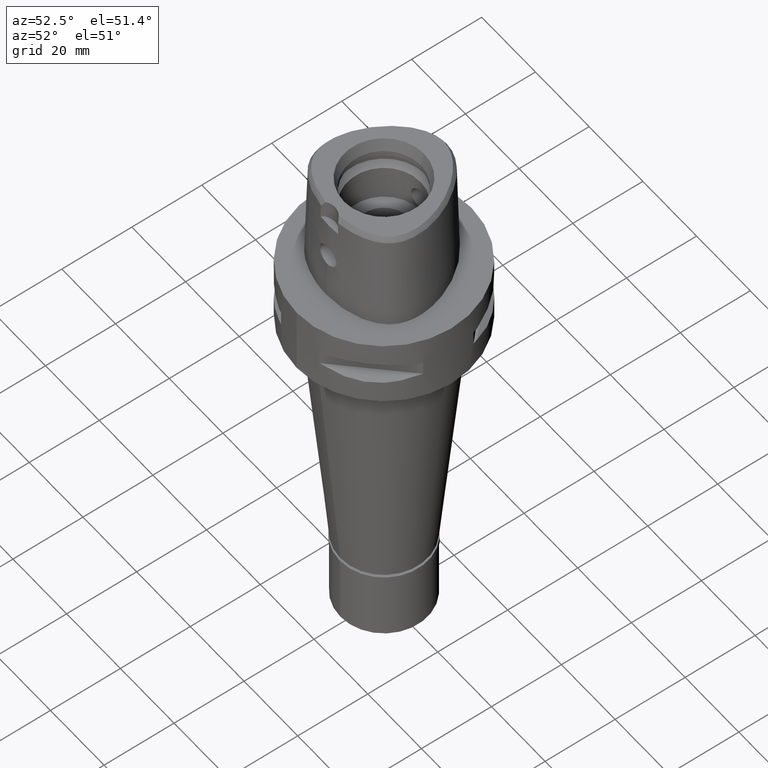
[diagram: clean part render]
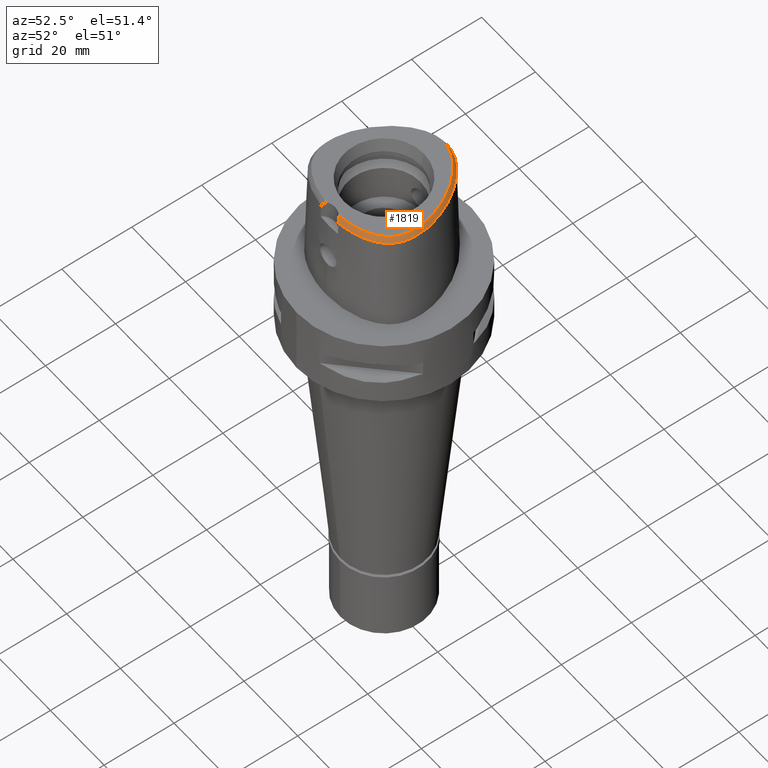
[diagram: same view with one face highlighted and labeled with its STEP entity id]
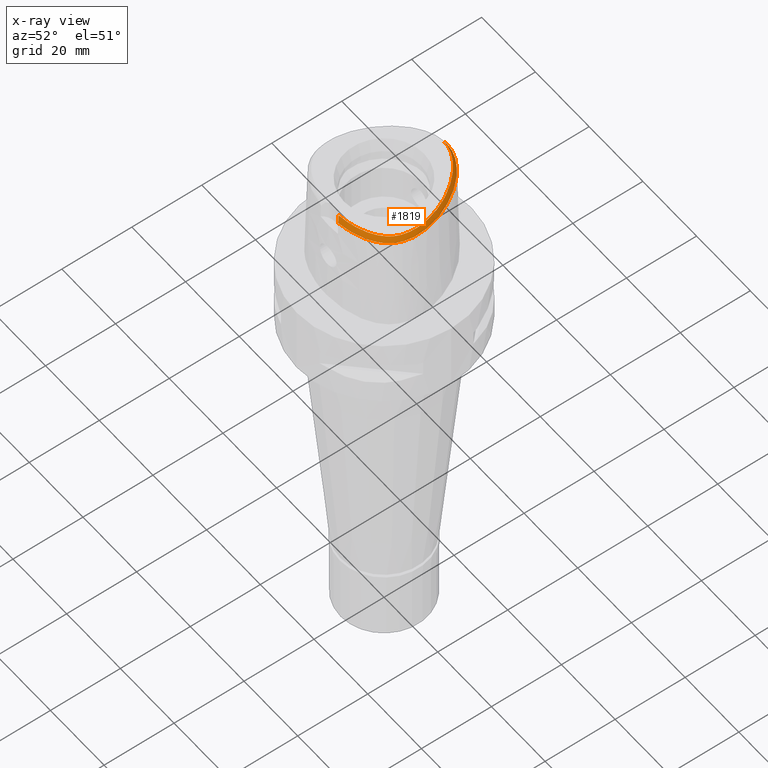
[diagram: x-ray of the same camera — body ghosted, the highlighted face saturated]
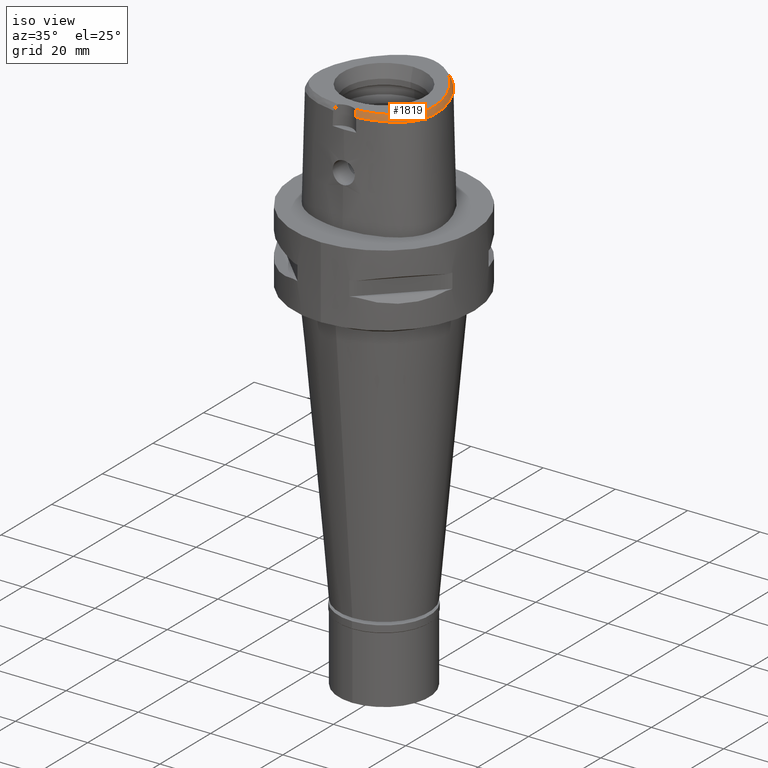
[diagram: same view with one face highlighted and labeled with its STEP entity id]
A machine part, auxiliary view. The second image highlights one B-rep face of the part: STEP entity #1819.
The next image is the same camera in x-ray: the body ghosted, the highlighted face saturated — about 0% of this face is hidden behind the body in this view.
A second angle (iso view) of the same face is appended — the face is thin or edge-on in the first view.
In plain terms, the highlighted face is a freeform B-spline surface patch.
Its self-contained STEP definition (entity closure, byte-faithful):
#11 = CARTESIAN_POINT ( 'NONE',  ( 15.20108607701999937, -9.758768688860000040, 28.35264070983000195 ) ) ;
#33 = CARTESIAN_POINT ( 'NONE',  ( 16.66822642488000028, -4.419018355000999598, 28.95776800847999866 ) ) ;
#60 = CARTESIAN_POINT ( 'NONE',  ( 14.93120362773000132, 2.838646878697999476, 30.16802042475999812 ) ) ;
#86 = CARTESIAN_POINT ( 'NONE',  ( 16.28426786323999664, -1.628544347997999964, 29.56289374736999775 ) ) ;
#90 = CARTESIAN_POINT ( 'NONE',  ( 13.06460231238608749, -11.91950040983109105, 28.52071728562181363 ) ) ;
#95 = CARTESIAN_POINT ( 'NONE',  ( -3.151836986556000306E-11, 17.98202997909999823, 28.52071728569000086 ) ) ;
#106 = CARTESIAN_POINT ( 'NONE',  ( 13.89958698847000029, 6.911061858659999224, 28.95776760247999704 ) ) ;
#109 = CARTESIAN_POINT ( 'NONE',  ( -3.151836986556000306E-11, 17.98202997909999823, 28.52071728569000086 ) ) ;
#128 = CARTESIAN_POINT ( 'NONE',  ( 16.14363952323000007, -0.5742837384183000493, 29.56289418609000208 ) ) ;
#156 = CARTESIAN_POINT ( 'NONE',  ( 9.846525789996000810, 12.60585534085999981, 28.95776852402000401 ) ) ;
#177 = CARTESIAN_POINT ( 'NONE',  ( -0.4659712255681999760, 17.04655818646000043, 30.16802046063999754 ) ) ;
#207 = CARTESIAN_POINT ( 'NONE',  ( 10.55999432271999972, -12.41196316433999947, 30.16802043341999706 ) ) ;
#210 = CARTESIAN_POINT ( 'NONE',  ( 3.078265684543390002, 16.60532678263332329, 30.00000000000050449 ) ) ;
#228 = CARTESIAN_POINT ( 'NONE',  ( 4.136168815293000733, 17.18416905505999992, 28.35264180473000195 ) ) ;
#235 = CARTESIAN_POINT ( 'NONE',  ( 3.159355835243000232, -14.97804560411000097, 29.56289406500999917 ) ) ;
#255 = CARTESIAN_POINT ( 'NONE',  ( 7.215654530265999789, 14.98093043066000085, 28.95776696848999876 ) ) ;
#260 = CARTESIAN_POINT ( 'NONE',  ( 5.498338331967000059, -14.59466473752000049, 29.56289419962000053 ) ) ;
#279 = CARTESIAN_POINT ( 'NONE',  ( 5.553361508172001137, 16.09050947237000173, 28.95777147311999755 ) ) ;
#285 = CARTESIAN_POINT ( 'NONE',  ( 8.077160341298000645, -14.58980366241999960, 28.35264410543000224 ) ) ;
#290 = CARTESIAN_POINT ( 'NONE',  ( 12.04928217776374666, -11.59002493206947371, 30.00000000000409983 ) ) ;
#292 = B_SPLINE_SURFACE_WITH_KNOTS ( 'NONE', 3, 3, ( 
 ( #3299, #2569, #3381, #2171 ),
 ( #2972, #3272, #3682, #4110 ),
 ( #595, #674, #2196, #3347 ),
 ( #2517, #235, #4084, #1746 ),
 ( #4903, #1009, #3764, #2938 ),
 ( #3732, #260, #4799, #1795 ),
 ( #4481, #2864, #2889, #1773 ),
 ( #318, #2120, #4405, #285 ),
 ( #959, #4873, #3653, #1852 ),
 ( #4510, #4820, #1067, #2594 ),
 ( #207, #1369, #1391, #2912 ),
 ( #395, #3790, #4625, #2297 ),
 ( #4232, #819, #1475, #1191 ),
 ( #1924, #3502, #793, #2326 ),
 ( #4185, #4601, #2619, #2253 ),
 ( #3838, #3812, #4161, #3096 ),
 ( #3456, #4534, #1577, #1499 ),
 ( #3023, #4559, #3866, #11 ),
 ( #2998, #1526, #343, #1090 ),
 ( #3052, #725, #422, #4581 ),
 ( #4926, #1875, #1552, #3404 ),
 ( #3071, #2715, #1115, #2646 ),
 ( #745, #2273, #1162, #2685 ),
 ( #365, #1899, #3429, #4949 ),
 ( #1138, #2662, #1950, #4205 ),
 ( #766, #3480, #33, #4260 ),
 ( #2349, #3891, #445, #1973 ),
 ( #2809, #4279, #4672, #1239 ),
 ( #891, #86, #3531, #2787 ),
 ( #4349, #128, #1290, #1263 ),
 ( #517, #4328, #840, #1627 ),
 ( #2832, #4653, #1603, #1670 ),
 ( #60, #3167, #2093, #3195 ),
 ( #2422, #2740, #4004, #3961 ),
 ( #2762, #3122, #867, #2027 ),
 ( #910, #1645, #106, #1217 ),
 ( #2397, #2442, #3914, #3981 ),
 ( #540, #2370, #4719, #3146 ),
 ( #2071, #2465, #4301, #3938 ),
 ( #472, #2003, #497, #4696 ),
 ( #3602, #3553, #156, #2047 ),
 ( #1695, #3574, #3215, #4741 ),
 ( #1309, #4371, #931, #567 ),
 ( #3293, #2510, #255, #953 ),
 ( #669, #2190, #4835, #1740 ),
 ( #3727, #1034, #279, #2562 ),
 ( #2883, #4815, #1814, #2491 ),
 ( #641, #2139, #3702, #228 ),
 ( #1361, #1790, #1767, #1386 ),
 ( #2965, #1062, #3314, #4446 ),
 ( #692, #3339, #2165, #977 ),
 ( #2906, #4049, #1408, #4791 ),
 ( #4763, #4398, #2931, #4867 ),
 ( #4504, #3238, #1442, #4105 ),
 ( #3623, #3267, #2587, #4422 ),
 ( #177, #4129, #4474, #1716 ) ),
 .UNSPECIFIED., .F., .F., .F.,
 ( 4, 1, 1, 1, 1, 1, 1, 1, 1, 1, 1, 1, 1, 1, 1, 1, 1, 1, 1, 1, 1, 1, 1, 1, 1, 1, 1, 1, 1, 1, 1, 1, 1, 1, 1, 1, 1, 1, 1, 1, 1, 1, 1, 1, 1, 1, 1, 1, 1, 1, 1, 1, 1, 4 ),
 ( 4, 4 ),
 ( -0.006850724150829000207, 0.0000000000000000000, 0.005706470806014000280, 0.02559234138984000165, 0.04547821197368000223, 0.06536408255751000040, 0.08524995314132000068, 0.1051358237252000005, 0.1250216943090000088, 0.1449075648927999893, 0.1647934354767000009, 0.1846793060604999814, 0.2045651766443000175, 0.2244510472280999980, 0.2443369178119999818, 0.2642227883957999901, 0.2841086589796000261, 0.3039945295635000377, 0.3238804001471999872, 0.3437662707310999988, 0.3636521413150000104, 0.3835380118987999909, 0.4034238824826000269, 0.4233097530664000074, 0.4431956236502999635, 0.4630814942340999996, 0.4829673648179000356, 0.5028532354018000472, 0.5227391059856000277, 0.5426249765694000082, 0.5625108471533000198, 0.5823967177369999693, 0.6022825883208999809, 0.6221684589047999925, 0.6420543294886000840, 0.6619402000723999535, 0.6818260706561999340, 0.7017119412401000567, 0.7215978118238999262, 0.7414836824077000177, 0.7613695529916000293, 0.7812554235752999787, 0.8011412941591999903, 0.8210271647431000019, 0.8409130353268000624, 0.8607989059106999630, 0.8806847764944999435, 0.9005706470783999551, 0.9204565176621999356, 0.9403423882460000272, 0.9602282588299000388, 0.9801141294135999882, 1.000000000000000000, 1.016057694064999906 ),
 ( -0.08998240799969001169, 1.090013252295000123 ),
 .UNSPECIFIED. ) ;
#312 = LINE ( 'NONE', #642, #4620 ) ;
#318 = CARTESIAN_POINT ( 'NONE',  ( 7.753896900226999733, -13.62494478887999882, 30.16802009195999901 ) ) ;
#343 = CARTESIAN_POINT ( 'NONE',  ( 15.26352445036999939, -9.046657508629998290, 28.95776745083999870 ) ) ;
#346 = CARTESIAN_POINT ( 'NONE',  ( 15.87349190488414052, -5.869792298897986704, 30.00000000000088107 ) ) ;
#365 = CARTESIAN_POINT ( 'NONE',  ( 15.78127682140000054, -5.850567774874999571, 30.16802044567999985 ) ) ;
#368 = CARTESIAN_POINT ( 'NONE',  ( 16.12546998862802639, -3.533461825553696478, 30.00000000000498090 ) ) ;
#395 = CARTESIAN_POINT ( 'NONE',  ( 11.31767571341000078, -11.96818521472000008, 30.16802036058999903 ) ) ;
#400 = CARTESIAN_POINT ( 'NONE',  ( 2.538962679605312633, -14.79292722369588020, 30.00000000000433431 ) ) ;
#422 = CARTESIAN_POINT ( 'NONE',  ( 15.56185250034999967, -8.515783017936000121, 28.95776713568000105 ) ) ;
#445 = CARTESIAN_POINT ( 'NONE',  ( 16.70965985035999779, -3.542375271213999977, 28.95776752072999827 ) ) ;
#449 = CARTESIAN_POINT ( 'NONE',  ( 15.07117004567390772, -9.793013887526733185, 28.52071728562181363 ) ) ;
#472 = CARTESIAN_POINT ( 'NONE',  ( 10.20690534842999853, 11.18227713228999853, 30.16802047890999816 ) ) ;
#497 = CARTESIAN_POINT ( 'NONE',  ( 10.72562660520000044, 11.61941119964000002, 28.95776703399999974 ) ) ;
#517 = CARTESIAN_POINT ( 'NONE',  ( 15.59736223284999923, 0.4714744251984999690, 30.16802001474000150 ) ) ;
#520 = CARTESIAN_POINT ( 'NONE',  ( 13.75951381385524641, 7.944084035686222123, 28.52071728562181363 ) ) ;
#540 = CARTESIAN_POINT ( 'NONE',  ( 11.84862262587000181, 9.008523897194999464, 30.16802029405999974 ) ) ;
#544 = CARTESIAN_POINT ( 'NONE',  ( 16.01658383235946559, -8.155509186612466266, 28.52071728562181363 ) ) ;
#567 = CARTESIAN_POINT ( 'NONE',  ( 8.299428632036999431, 14.54708683189999974, 28.35264139481000001 ) ) ;
#595 = CARTESIAN_POINT ( 'NONE',  ( 2.372222486974000066, -14.71472236847000126, 30.16802033112000103 ) ) ;
#598 = CARTESIAN_POINT ( 'NONE',  ( 2.412811123804766034, 16.81558681049695281, 30.00000000001108802 ) ) ;
#641 = CARTESIAN_POINT ( 'NONE',  ( 3.735855227914000487, 16.24848426612999930, 30.16802032662000244 ) ) ;
#642 = CARTESIAN_POINT ( 'NONE',  ( -3.151836986556000306E-11, 17.98202997909999823, 28.52071728569000086 ) ) ;
#669 = CARTESIAN_POINT ( 'NONE',  ( 5.995707402801000008, 15.01524536594000026, 30.16802002677999894 ) ) ;
#674 = CARTESIAN_POINT ( 'NONE',  ( 2.402456946345000066, -15.05239832832999980, 29.56289414095000012 ) ) ;
#692 = CARTESIAN_POINT ( 'NONE',  ( 1.754750221224000040, 16.87951038267999948, 30.16802039132999980 ) ) ;
#701 = CARTESIAN_POINT ( 'NONE',  ( 11.11868440496200350, 10.19157821280083454, 29.99999999999684874 ) ) ;
#725 = CARTESIAN_POINT ( 'NONE',  ( 15.26036567120000065, -8.360145928168998708, 29.56289379909999937 ) ) ;
#728 = CARTESIAN_POINT ( 'NONE',  ( 11.92667412982349084, 9.061218325782578020, 30.00000000000128253 ) ) ;
#745 = CARTESIAN_POINT ( 'NONE',  ( 15.62053867974000099, -6.508755834456999345, 30.16802043498999808 ) ) ;
#749 = CARTESIAN_POINT ( 'NONE',  ( 16.08569500455237744, -4.373922630229524877, 29.99999999999851141 ) ) ;
#766 = CARTESIAN_POINT ( 'NONE',  ( 15.99178393915999941, -4.366652657469000332, 30.16802032181000115 ) ) ;
#770 = CARTESIAN_POINT ( 'NONE',  ( 16.11273027396869395, -2.627494158581224148, 29.99999999999872458 ) ) ;
#793 = CARTESIAN_POINT ( 'NONE',  ( 13.02515834811999973, -11.57704467828000006, 28.95776727097999981 ) ) ;
#819 = CARTESIAN_POINT ( 'NONE',  ( 12.19202666748000041, -11.78919921263000070, 29.56289411314000048 ) ) ;
#840 = CARTESIAN_POINT ( 'NONE',  ( 16.25952873868000026, 0.6188832785989999419, 28.95776991326999905 ) ) ;
#844 = CARTESIAN_POINT ( 'NONE',  ( 16.85489147434690338, -5.354527548487587829, 28.52071728562181363 ) ) ;
#867 = CARTESIAN_POINT ( 'NONE',  ( 14.54045689824000043, 5.623977478973000821, 28.95776800696999942 ) ) ;
#891 = CARTESIAN_POINT ( 'NONE',  ( 15.94691520740000179, -1.663942353905000004, 30.16802048240999667 ) ) ;
#910 = CARTESIAN_POINT ( 'NONE',  ( 13.30058975783000008, 6.592719771549999663, 30.16802038727000124 ) ) ;
#931 = CARTESIAN_POINT ( 'NONE',  ( 8.079606669788001128, 14.28876433472999885, 28.95776771935000227 ) ) ;
#953 = CARTESIAN_POINT ( 'NONE',  ( 7.420276005139000652, 15.25146325370999989, 28.35264020800000040 ) ) ;
#959 = CARTESIAN_POINT ( 'NONE',  ( 8.781287881952000163, -13.24681082985999936, 30.16802042516999904 ) ) ;
#963 = CARTESIAN_POINT ( 'NONE',  ( 0.1912597614439663918, 17.15328888648424055, 30.00000000000486367 ) ) ;
#977 = CARTESIAN_POINT ( 'NONE',  ( 1.964110771000000311, 17.87555189819000034, 28.35264117027000097 ) ) ;
#988 = CARTESIAN_POINT ( 'NONE',  ( 3.772905803807268921, 16.33508552418862791, 30.00000000000497025 ) ) ;
#1009 = CARTESIAN_POINT ( 'NONE',  ( 4.198490786215000270, -14.83958820926000044, 29.56289374305000095 ) ) ;
#1034 = CARTESIAN_POINT ( 'NONE',  ( 5.382250016268000259, 15.79760845128000035, 29.56289561819999889 ) ) ;
#1062 = CARTESIAN_POINT ( 'NONE',  ( 2.479143986014000323, 17.05149866766999978, 29.56289384507999785 ) ) ;
#1067 = CARTESIAN_POINT ( 'NONE',  ( 10.00378820212000086, -13.45443895826999814, 28.95776720350000133 ) ) ;
#1090 = CARTESIAN_POINT ( 'NONE',  ( 15.55325716051000029, -9.223218119925000735, 28.35264097041000042 ) ) ;
#1115 = CARTESIAN_POINT ( 'NONE',  ( 16.06810827240999728, -7.342948633684000193, 28.95776753670000048 ) ) ;
#1118 = CARTESIAN_POINT ( 'NONE',  ( 15.39668103801313315, 1.657188505494333608, 29.99999999999486988 ) ) ;
#1138 = CARTESIAN_POINT ( 'NONE',  ( 15.90656354326000077, -5.138263331581000237, 30.16802041655000011 ) ) ;
#1157 = VERTEX_POINT ( 'NONE', #1164 ) ;
#1162 = CARTESIAN_POINT ( 'NONE',  ( 16.27418236763000081, -6.690817860699000086, 28.95776730649999919 ) ) ;
#1164 = CARTESIAN_POINT ( 'NONE',  ( -6.301949014363000871E-11, 17.15328888647999861, 30.00000000000000000 ) ) ;
#1166 = CARTESIAN_POINT ( 'NONE',  ( 5.446614459517748585, -14.35518554872416352, 30.00000000000575184 ) ) ;
#1191 = CARTESIAN_POINT ( 'NONE',  ( 12.58725554600000152, -12.34067007982999975, 28.35264165578999851 ) ) ;
#1217 = CARTESIAN_POINT ( 'NONE',  ( 14.19908560378999951, 7.070232902214999449, 28.35264121008000160 ) ) ;
#1221 = CARTESIAN_POINT ( 'NONE',  ( 1.893775678554766806, 17.84807068955533538, 28.52071728562181363 ) ) ;
#1239 = CARTESIAN_POINT ( 'NONE',  ( 17.03523384025000098, -2.585599492101999797, 28.35264081057999874 ) ) ;
#1263 = CARTESIAN_POINT ( 'NONE',  ( 16.81309640162000107, -0.4645396157169000007, 28.35264193072999817 ) ) ;
#1290 = CARTESIAN_POINT ( 'NONE',  ( 16.47836796242000190, -0.5194116770676000527, 28.95776805840999657 ) ) ;
#1309 = CARTESIAN_POINT ( 'NONE',  ( 7.639962745288999990, 13.77211934037999974, 30.16802036843000323 ) ) ;
#1361 = CARTESIAN_POINT ( 'NONE',  ( 3.046870444664000033, 16.51651577336999921, 30.16802053052999710 ) ) ;
#1369 = CARTESIAN_POINT ( 'NONE',  ( 10.72210228808000032, -12.70993824541999828, 29.56289387478999942 ) ) ;
#1386 = CARTESIAN_POINT ( 'NONE',  ( 3.386080856372000181, 17.47607585737999969, 28.35263980546000084 ) ) ;
#1391 = CARTESIAN_POINT ( 'NONE',  ( 10.88421025343999915, -13.00791332650000065, 28.95776731615000088 ) ) ;
#1408 = CARTESIAN_POINT ( 'NONE',  ( 1.242508783616000034, 17.65713457141000120, 28.95776718780000181 ) ) ;
#1442 = CARTESIAN_POINT ( 'NONE',  ( 0.04123805393192999519, 17.74291017939000170, 28.95776754311999923 ) ) ;
#1454 = CARTESIAN_POINT ( 'NONE',  ( 14.55828366953175745, 4.114142377745124257, 29.99999999999967670 ) ) ;
#1458 = CARTESIAN_POINT ( 'NONE',  ( 3.168920890822999770, -15.55911073834000113, 28.52071374672999582 ) ) ;
#1471 = DIRECTION ( 'NONE',  ( -1.857805914923029675E-11, -0.4887572537803078765, 0.8724198226067148010 ) ) ;
#1475 = CARTESIAN_POINT ( 'NONE',  ( 12.38964110673999919, -12.06493464623000023, 28.95776788446000083 ) ) ;
#1478 = CARTESIAN_POINT ( 'NONE',  ( 8.816245487876880560, -13.33426548781757504, 30.00000000000753886 ) ) ;
#1499 = CARTESIAN_POINT ( 'NONE',  ( 14.79735732513999835, -10.28930169785000004, 28.35264137004999796 ) ) ;
#1502 = CARTESIAN_POINT ( 'NONE',  ( 14.76450668990636572, -8.742560395150022146, 30.00000000000000711 ) ) ;
#1526 = CARTESIAN_POINT ( 'NONE',  ( 14.97379174023000026, -8.870096897335001174, 29.56289393128000142 ) ) ;
#1552 = CARTESIAN_POINT ( 'NONE',  ( 15.82975963483999848, -7.950451497459000372, 28.95776760727000010 ) ) ;
#1556 = CARTESIAN_POINT ( 'NONE',  ( 15.29323375805276974, -7.718923543002600418, 30.00000000000494182 ) ) ;
#1577 = CARTESIAN_POINT ( 'NONE',  ( 14.53472563156999975, -10.07451885591000007, 28.95776770368000186 ) ) ;
#1603 = CARTESIAN_POINT ( 'NONE',  ( 15.95899656071000194, 1.815535126113000164, 28.95776962322999992 ) ) ;
#1627 = CARTESIAN_POINT ( 'NONE',  ( 16.59061199158999855, 0.6925877052993000271, 28.35264486254000005 ) ) ;
#1645 = CARTESIAN_POINT ( 'NONE',  ( 13.60008837314999930, 6.751890815104999888, 29.56289399487999958 ) ) ;
#1648 = CARTESIAN_POINT ( 'NONE',  ( 3.168920890822999770, -15.55911073834000113, 28.52071374672999582 ) ) ;
#1670 = CARTESIAN_POINT ( 'NONE',  ( 16.28548033193000322, 1.907472125490000003, 28.35264440410000475 ) ) ;
#1673 = CARTESIAN_POINT ( 'NONE',  ( 3.168920890822999770, -15.55911073834000113, 28.52071374672999582 ) ) ;
#1695 = CARTESIAN_POINT ( 'NONE',  ( 8.492151860396999652, 13.00596698357000136, 30.16802015642000256 ) ) ;
#1698 = CARTESIAN_POINT ( 'NONE',  ( 8.702202469521990835, -14.36510984286092274, 28.52071728562181363 ) ) ;
#1716 = CARTESIAN_POINT ( 'NONE',  ( -0.5229561071495999469, 18.06193447009999886, 28.35264049065000336 ) ) ;
#1740 = CARTESIAN_POINT ( 'NONE',  ( 6.560872531773000560, 15.86150864000000027, 28.35264474450000094 ) ) ;
#1746 = CARTESIAN_POINT ( 'NONE',  ( 3.239264989844999665, -15.65148810715999694, 28.35264147439999860 ) ) ;
#1767 = CARTESIAN_POINT ( 'NONE',  ( 3.273010719136000279, 17.15622249603999805, 28.95776671380999545 ) ) ;
#1773 = CARTESIAN_POINT ( 'NONE',  ( 6.902178190723000206, -14.94828583762000029, 28.35264484957999898 ) ) ;
#1790 = CARTESIAN_POINT ( 'NONE',  ( 3.159940581899999934, 16.83636913471000085, 29.56289362216999805 ) ) ;
#1795 = CARTESIAN_POINT ( 'NONE',  ( 5.641550641882000505, -15.25773125167999922, 28.35264198171000061 ) ) ;
#1814 = CARTESIAN_POINT ( 'NONE',  ( 4.762699714753000357, 16.51934938710000011, 28.95777065861999944 ) ) ;
#1819 = ADVANCED_FACE ( 'NONE', ( #3707 ), #292, .F. ) ;
#1825 = CARTESIAN_POINT ( 'NONE',  ( 7.783816186093136302, -13.71424622167420182, 30.00000000000237321 ) ) ;
#1852 = CARTESIAN_POINT ( 'NONE',  ( 9.158987939148000024, -14.19171619277000040, 28.35264083852999661 ) ) ;
#1875 = CARTESIAN_POINT ( 'NONE',  ( 15.51824948698999940, -7.816024975935000896, 29.56289399688000330 ) ) ;
#1897 = B_SPLINE_CURVE_WITH_KNOTS ( 'NONE', 3,
 ( #3323, #963, #2500, #2916, #4038, #598, #210, #988, #3276, #4802, #2520, #4457, #2175, #3075, #3001, #3432, #701, #728, #2256, #3407, #4929, #1454, #4606, #1118, #2622, #3842, #4906, #770, #368, #749, #3794, #346, #4584, #3460, #1556, #4188, #1502, #3026, #2200, #2598, #4209, #2276, #290, #4877, #2227, #4562, #1478, #1825, #2301, #1166, #2649, #3736, #400, #4138 ),
 .UNSPECIFIED., .F., .F.,
 ( 4, 1, 1, 1, 1, 1, 1, 1, 1, 1, 1, 1, 1, 1, 1, 1, 1, 1, 1, 1, 1, 1, 1, 1, 1, 1, 1, 1, 1, 1, 1, 1, 1, 1, 1, 1, 1, 1, 1, 1, 1, 1, 1, 1, 1, 1, 1, 1, 1, 1, 1, 4 ),
 ( 0.0000000000000000000, 0.01988587058640001182, 0.03977174117009996124, 0.05965761175399997285, 0.07954348233780006439, 0.09942935292160004490, 0.1193152235055000565, 0.1392010940893000370, 0.1590869646731999376, 0.1789728352568999981, 0.1988587058408000097, 0.2187445764247000213, 0.2386304470083999707, 0.2585163175922999823, 0.2784021881761000738, 0.2982880587598999433, 0.3181739293438000660, 0.3380597999276000465, 0.3579456705113999160, 0.3778315410952000075, 0.3977174116791000191, 0.4176032822630000307, 0.4374891528466999802, 0.4573750234305999918, 0.4772608940143999723, 0.4971467645981999528, 0.5170326351820999644, 0.5369185057659000559, 0.5568043763497000365, 0.5766902469335999371, 0.5965761175174000286, 0.6164619881012000091, 0.6363478586849999896, 0.6562337292689000012, 0.6761195998528000128, 0.6960054704364999623, 0.7158913410203999739, 0.7357772116042000654, 0.7556630821880000459, 0.7755489527718999465, 0.7954348233557000381, 0.8153206939395000186, 0.8352065645232999991, 0.8550924351072000107, 0.8749783056909999912, 0.8948641762747999717, 0.9147500468586799993, 0.9346359174424899718, 0.9545217880263200394, 0.9744076586101599879, 0.9942935291939859477, 1.000000000000000000 ),
 .UNSPECIFIED. ) ;
#1899 = CARTESIAN_POINT ( 'NONE',  ( 16.11338997565000142, -5.919805008861000140, 29.56289384291000033 ) ) ;
#1924 = CARTESIAN_POINT ( 'NONE',  ( 12.59549480417000034, -11.05193186378999926, 30.16802044070999855 ) ) ;
#1950 = CARTESIAN_POINT ( 'NONE',  ( 16.57834737185999785, -5.233402230241999575, 28.95776742079000243 ) ) ;
#1963 = B_SPLINE_CURVE_WITH_KNOTS ( 'NONE', 3,
 ( #1458, #3389, #4588, #2981 ),
 .UNSPECIFIED., .F., .F.,
 ( 4, 4 ),
 ( 0.0000000000000000000, 1.000000000000000000 ),
 .UNSPECIFIED. ) ;
#1973 = CARTESIAN_POINT ( 'NONE',  ( 17.04884399427000119, -3.547550471321999854, 28.35264108087000423 ) ) ;
#1977 = CARTESIAN_POINT ( 'NONE',  ( 3.738627708319470333, -15.49270856215736281, 28.52071728562181363 ) ) ;
#2003 = CARTESIAN_POINT ( 'NONE',  ( 10.46626597681999904, 11.40084416595999883, 29.56289375645999939 ) ) ;
#2027 = CARTESIAN_POINT ( 'NONE',  ( 14.84792544304999851, 5.767150398131000166, 28.35264184943000032 ) ) ;
#2030 = CARTESIAN_POINT ( 'NONE',  ( 7.523733068099057064, 15.26501041874376696, 28.52071728562181363 ) ) ;
#2047 = CARTESIAN_POINT ( 'NONE',  ( 10.09366286092000031, 12.83816147391999962, 28.35264266666999688 ) ) ;
#2071 = CARTESIAN_POINT ( 'NONE',  ( 11.04353024335000022, 10.13482674087000035, 30.16802034839999891 ) ) ;
#2093 = CARTESIAN_POINT ( 'NONE',  ( 15.57318278978999970, 3.057793050053000172, 28.95776736994000089 ) ) ;
#2120 = CARTESIAN_POINT ( 'NONE',  ( 7.861651380583999149, -13.94656441339000175, 29.56289476311999920 ) ) ;
#2139 = CARTESIAN_POINT ( 'NONE',  ( 3.869293090373999711, 16.56037919578000128, 29.56289415266000020 ) ) ;
#2165 = CARTESIAN_POINT ( 'NONE',  ( 1.894323921075000028, 17.54353805969000035, 28.95776757728999939 ) ) ;
#2171 = CARTESIAN_POINT ( 'NONE',  ( 1.994024657925000055, -15.76440487861999884, 28.35264174986000185 ) ) ;
#2175 = CARTESIAN_POINT ( 'NONE',  ( 7.700998872106144866, 13.84384558891187389, 30.00000000000491696 ) ) ;
#2184 = ORIENTED_EDGE ( 'NONE', *, *, #4603, .F. ) ;
#2190 = CARTESIAN_POINT ( 'NONE',  ( 6.184095779125000192, 15.29733312395999967, 29.56289493268999991 ) ) ;
#2196 = CARTESIAN_POINT ( 'NONE',  ( 2.432691405716000066, -15.39007428820000101, 28.95776795079000010 ) ) ;
#2200 = CARTESIAN_POINT ( 'NONE',  ( 14.08238499151621248, -9.704590128437896368, 30.00000000000073186 ) ) ;
#2227 = CARTESIAN_POINT ( 'NONE',  ( 10.60500548643880414, -12.49469941439922316, 29.99999999999686651 ) ) ;
#2238 = ORIENTED_EDGE ( 'NONE', *, *, #3313, .F. ) ;
#2253 = CARTESIAN_POINT ( 'NONE',  ( 13.82200032031999903, -11.32990785057000060, 28.35264069435000067 ) ) ;
#2256 = CARTESIAN_POINT ( 'NONE',  ( 12.68590586676490872, 7.870511070825371824, 30.00000000000323652 ) ) ;
#2273 = CARTESIAN_POINT ( 'NONE',  ( 15.94736052367999868, -6.599786847577999715, 29.56289387074000174 ) ) ;
#2276 = CARTESIAN_POINT ( 'NONE',  ( 12.65514534656671586, -11.12483370674303096, 30.00000000000379075 ) ) ;
#2297 = CARTESIAN_POINT ( 'NONE',  ( 11.85771127240999867, -12.83076002688000017, 28.35264147164999926 ) ) ;
#2301 = CARTESIAN_POINT ( 'NONE',  ( 6.658132732488880379, -14.05774790739165780, 30.00000000000118305 ) ) ;
#2326 = CARTESIAN_POINT ( 'NONE',  ( 13.23999012008999898, -11.83960108551999824, 28.35264068610999999 ) ) ;
#2349 = CARTESIAN_POINT ( 'NONE',  ( 16.03129156254999899, -3.532024870997999777, 30.16802040045000055 ) ) ;
#2370 = CARTESIAN_POINT ( 'NONE',  ( 12.12972556687000036, 9.198303185228999368, 29.56289423735000099 ) ) ;
#2397 = CARTESIAN_POINT ( 'NONE',  ( 12.60518995400000009, 7.821996579905999170, 30.16802042417999630 ) ) ;
#2422 = CARTESIAN_POINT ( 'NONE',  ( 14.47092152110000107, 4.078974141564000178, 30.16802044355999968 ) ) ;
#2425 = CARTESIAN_POINT ( 'NONE',  ( 11.33338046474365512, -13.08225241901232039, 28.52071728562181363 ) ) ;
#2442 = CARTESIAN_POINT ( 'NONE',  ( 12.89588877867999983, 7.996721798354999855, 29.56289389884999963 ) ) ;
#2465 = CARTESIAN_POINT ( 'NONE',  ( 11.31419838921999954, 10.33921749387000055, 29.56289409596999818 ) ) ;
#2491 = CARTESIAN_POINT ( 'NONE',  ( 4.915484675685000582, 16.82222480428999845, 28.35264604065000071 ) ) ;
#2500 = CARTESIAN_POINT ( 'NONE',  ( 0.5691917915716412368, 17.14006060249140262, 30.00000000000553513 ) ) ;
#2510 = CARTESIAN_POINT ( 'NONE',  ( 7.011033055392999813, 14.71039760759999915, 29.56289372897999712 ) ) ;
#2517 = CARTESIAN_POINT ( 'NONE',  ( 3.119401257941999628, -14.64132435257999987, 30.16802036031000256 ) ) ;
#2520 = CARTESIAN_POINT ( 'NONE',  ( 6.048015628560345469, 15.09357031580357500, 30.00000000000343903 ) ) ;
#2562 = CARTESIAN_POINT ( 'NONE',  ( 5.724473000077000329, 16.38341049346000133, 28.35264732804999710 ) ) ;
#2569 = CARTESIAN_POINT ( 'NONE',  ( 1.945176214678000060, -15.08814482384999955, 29.56289413809999900 ) ) ;
#2587 = CARTESIAN_POINT ( 'NONE',  ( -0.3323063933234999823, 17.73255392700000144, 28.95776737910999898 ) ) ;
#2594 = CARTESIAN_POINT ( 'NONE',  ( 10.14784788447999908, -13.76153600185999970, 28.35264057945000005 ) ) ;
#2598 = CARTESIAN_POINT ( 'NONE',  ( 13.66559393375312403, -10.18115111193949929, 29.99999999999980460 ) ) ;
#2619 = CARTESIAN_POINT ( 'NONE',  ( 13.59049429220000071, -11.08191602281999977, 28.95776727619000113 ) ) ;
#2622 = CARTESIAN_POINT ( 'NONE',  ( 15.68929135223799598, 0.4919393172822187910, 30.00000000000285283 ) ) ;
#2646 = CARTESIAN_POINT ( 'NONE',  ( 16.38807260029999924, -7.455768792758999730, 28.35264110610999921 ) ) ;
#2649 = CARTESIAN_POINT ( 'NONE',  ( 4.159771979224646365, -14.59766906204496628, 30.00000000000463984 ) ) ;
#2662 = CARTESIAN_POINT ( 'NONE',  ( 16.24245545755999842, -5.185832780910999418, 29.56289391866999949 ) ) ;
#2685 = CARTESIAN_POINT ( 'NONE',  ( 16.60100421157000028, -6.781848873819999568, 28.35264074226000020 ) ) ;
#2715 = CARTESIAN_POINT ( 'NONE',  ( 15.74814394453000155, -7.230128474609999856, 29.56289396728000085 ) ) ;
#2740 = CARTESIAN_POINT ( 'NONE',  ( 14.78555680181000120, 4.205632746709999203, 29.56289384841999990 ) ) ;
#2744 = CARTESIAN_POINT ( 'NONE',  ( 0.6295828025424338170, 17.98202997637806888, 28.52071728562181363 ) ) ;
#2762 = CARTESIAN_POINT ( 'NONE',  ( 13.92551980859999894, 5.337631640657999554, 30.16802032205000117 ) ) ;
#2787 = CARTESIAN_POINT ( 'NONE',  ( 16.95897317490999967, -1.557748336186000060, 28.35264027729000347 ) ) ;
#2809 = CARTESIAN_POINT ( 'NONE',  ( 16.01864062730999905, -2.631767154924999907, 30.16802042800999928 ) ) ;
#2832 = CARTESIAN_POINT ( 'NONE',  ( 15.30602901826000029, 1.631661127357000085, 30.16802006149000093 ) ) ;
#2863 = ORIENTED_EDGE ( 'NONE', *, *, #3060, .T. ) ;
#2864 = CARTESIAN_POINT ( 'NONE',  ( 6.722887135701999028, -14.29404098421000135, 29.56289496057000221 ) ) ;
#2883 = CARTESIAN_POINT ( 'NONE',  ( 4.457129792887999820, 15.91359855272000345, 30.16801989458000222 ) ) ;
#2889 = CARTESIAN_POINT ( 'NONE',  ( 6.812532663212000017, -14.62116341091000038, 28.95776990506999837 ) ) ;
#2906 = CARTESIAN_POINT ( 'NONE',  ( 1.148419774996000120, 16.98513741786999987, 30.16802045412000055 ) ) ;
#2912 = CARTESIAN_POINT ( 'NONE',  ( 11.04631821879999976, -13.30588840759000036, 28.35264075751999968 ) ) ;
#2916 = CARTESIAN_POINT ( 'NONE',  ( 1.161482229273709033, 17.07843133414790771, 30.00000000000297362 ) ) ;
#2931 = CARTESIAN_POINT ( 'NONE',  ( 0.6101341056648000860, 17.72298940832000014, 28.95776722765000244 ) ) ;
#2938 = CARTESIAN_POINT ( 'NONE',  ( 4.305694858988998952, -15.50941044500000032, 28.35264026102000301 ) ) ;
#2965 = CARTESIAN_POINT ( 'NONE',  ( 2.387313251284000071, 16.72490399869000299, 30.16802044485999801 ) ) ;
#2972 = CARTESIAN_POINT ( 'NONE',  ( 2.080499103721999976, -14.73847350319999983, 30.16802033008000095 ) ) ;
#2981 = CARTESIAN_POINT ( 'NONE',  ( 2.406543924163999648, -14.80491841401999942, 30.00000000000000000 ) ) ;
#2985 = B_SPLINE_CURVE_WITH_KNOTS ( 'NONE', 3,
 ( #109, #2744, #1221, #3895, #2030, #4744, #520, #3149, #3577, #4700, #844, #3556, #544, #3170, #449, #3919, #90, #2425, #1698, #3508, #1977, #1648 ),
 .UNSPECIFIED., .F., .F.,
 ( 4, 1, 1, 1, 1, 1, 1, 1, 1, 1, 1, 1, 1, 1, 1, 1, 1, 1, 1, 4 ),
 ( 0.0000000000000000000, 0.04404152929334002875, 0.08808305858551723766, 0.1761661171698718775, 0.2642491757542265174, 0.3523322343385811850, 0.4404152929230414348, 0.5284983515073961025, 0.5725398807995734085, 0.6165814100917506035, 0.6606229393839280206, 0.6826437040300166181, 0.7046644686762110199, 0.7266852333222997284, 0.7487059979682826327, 0.7927475272605656320, 0.8367890565527429381, 0.8808305858449201331, 0.9689136444292959505, 1.000000000000000000 ),
 .UNSPECIFIED. ) ;
#2998 = CARTESIAN_POINT ( 'NONE',  ( 14.68405903008999935, -8.693536286041000594, 30.16802041170999971 ) ) ;
#3001 = CARTESIAN_POINT ( 'NONE',  ( 9.420872132874471561, 12.20574557692369488, 30.00000000000589750 ) ) ;
#3023 = CARTESIAN_POINT ( 'NONE',  ( 14.37082809870000055, -9.169981917127000060, 30.16802043828999658 ) ) ;
#3026 = CARTESIAN_POINT ( 'NONE',  ( 14.44767169633571413, -9.224476417585490751, 30.00000000000223110 ) ) ;
#3052 = CARTESIAN_POINT ( 'NONE',  ( 14.95887884205000162, -8.204508838401999071, 30.16802046251999769 ) ) ;
#3060 = EDGE_CURVE ( 'NONE', #3986, #1157, #312, .T. ) ;
#3071 = CARTESIAN_POINT ( 'NONE',  ( 15.42817961663999959, -7.117308315535999519, 30.16802039787000211 ) ) ;
#3075 = CARTESIAN_POINT ( 'NONE',  ( 8.557117433367022130, 13.07415149352835115, 30.00000000000346390 ) ) ;
#3096 = CARTESIAN_POINT ( 'NONE',  ( 14.33933930363000009, -10.81289298040000091, 28.35264076666999955 ) ) ;
#3122 = CARTESIAN_POINT ( 'NONE',  ( 14.23298835341999968, 5.480804559815999788, 29.56289416451000207 ) ) ;
#3146 = CARTESIAN_POINT ( 'NONE',  ( 12.69193144887000102, 9.577861761298001042, 28.35264212395000172 ) ) ;
#3149 = CARTESIAN_POINT ( 'NONE',  ( 15.84228676732838537, 3.460033425848969557, 28.52071728562181363 ) ) ;
#3167 = CARTESIAN_POINT ( 'NONE',  ( 15.25219320875999962, 2.948219964374999780, 29.56289389735000128 ) ) ;
#3170 = CARTESIAN_POINT ( 'NONE',  ( 15.58740368722204295, -8.999391713747533217, 28.52071728562181363 ) ) ;
#3195 = CARTESIAN_POINT ( 'NONE',  ( 15.89417237082000156, 3.167366135729999588, 28.35264084253999783 ) ) ;
#3215 = CARTESIAN_POINT ( 'NONE',  ( 8.960099630794998049, 13.49710079417999964, 28.95776903444000183 ) ) ;
#3238 = CARTESIAN_POINT ( 'NONE',  ( 0.03974766260076999930, 17.40367345568000346, 29.56289396998000285 ) ) ;
#3267 = CARTESIAN_POINT ( 'NONE',  ( -0.3195742430544999957, 17.39372517624000025, 29.56289390119000160 ) ) ;
#3272 = CARTESIAN_POINT ( 'NONE',  ( 2.106973878026999980, -15.07645541269999967, 29.56289414365999946 ) ) ;
#3276 = CARTESIAN_POINT ( 'NONE',  ( 4.499552315896126586, 15.99769543814611161, 30.00000000000117950 ) ) ;
#3293 = CARTESIAN_POINT ( 'NONE',  ( 6.806411580520999927, 14.43986478455000011, 30.16802048946999903 ) ) ;
#3299 = CARTESIAN_POINT ( 'NONE',  ( 1.920751993055000106, -14.75001479646999947, 30.16802033222000290 ) ) ;
#3313 = EDGE_CURVE ( 'NONE', #4633, #3409, #1963, .T. ) ;
#3314 = CARTESIAN_POINT ( 'NONE',  ( 2.570974720743999686, 17.37809333665000011, 28.95776724529000390 ) ) ;
#3323 = CARTESIAN_POINT ( 'NONE',  ( -6.301949014363000871E-11, 17.15328888647999861, 30.00000000000000000 ) ) ;
#3339 = CARTESIAN_POINT ( 'NONE',  ( 1.824537071148999878, 17.21152422117999947, 29.56289398431000137 ) ) ;
#3347 = CARTESIAN_POINT ( 'NONE',  ( 2.462925865086999622, -15.72775024806000133, 28.35264176061999919 ) ) ;
#3381 = CARTESIAN_POINT ( 'NONE',  ( 1.969600436302000324, -15.42627485123999875, 28.95776794398000220 ) ) ;
#3389 = CARTESIAN_POINT ( 'NONE',  ( 2.935843368202407433, -15.25651436814638018, 29.10537844854268741 ) ) ;
#3404 = CARTESIAN_POINT ( 'NONE',  ( 16.14126978268999935, -8.084878018982999848, 28.35264121764999956 ) ) ;
#3407 = CARTESIAN_POINT ( 'NONE',  ( 13.38374903490676715, 6.636915464740255288, 30.00000000000532552 ) ) ;
#3409 = VERTEX_POINT ( 'NONE', #4704 ) ;
#3429 = CARTESIAN_POINT ( 'NONE',  ( 16.44550312990000052, -5.989042242847000708, 28.95776724012999992 ) ) ;
#3432 = CARTESIAN_POINT ( 'NONE',  ( 10.27891984617975041, 11.24296481357848521, 30.00000000000033040 ) ) ;
#3456 = CARTESIAN_POINT ( 'NONE',  ( 14.00946224443999988, -9.644953172037000755, 30.16802037094999989 ) ) ;
#3460 = CARTESIAN_POINT ( 'NONE',  ( 15.51702143705771597, -7.148634146068657103, 29.99999999999914380 ) ) ;
#3480 = CARTESIAN_POINT ( 'NONE',  ( 16.33000518201999895, -4.392835506235000409, 29.56289416515000212 ) ) ;
#3502 = CARTESIAN_POINT ( 'NONE',  ( 12.81032657615000048, -11.31448827104000010, 29.56289385585000318 ) ) ;
#3508 = CARTESIAN_POINT ( 'NONE',  ( 5.902447799197039657, -15.16907841529689449, 28.52071728562181363 ) ) ;
#3531 = CARTESIAN_POINT ( 'NONE',  ( 16.62162051907000304, -1.593146342092000012, 28.95776701232999883 ) ) ;
#3553 = CARTESIAN_POINT ( 'NONE',  ( 9.599388719073999710, 12.37354920780999912, 29.56289438135999958 ) ) ;
#3556 = CARTESIAN_POINT ( 'NONE',  ( 16.47905536660993064, -6.962316254603202026, 28.52071728562181363 ) ) ;
#3574 = CARTESIAN_POINT ( 'NONE',  ( 8.726125745595998850, 13.25153388887000006, 29.56289459542999865 ) ) ;
#3577 = CARTESIAN_POINT ( 'NONE',  ( 16.79165444020065578, -0.3537785292841386653, 28.52071728562181363 ) ) ;
#3602 = CARTESIAN_POINT ( 'NONE',  ( 9.352251648153000474, 12.14124307475000109, 30.16802023870999960 ) ) ;
#3623 = CARTESIAN_POINT ( 'NONE',  ( -0.3068420927854999536, 17.05489642547999907, 30.16802042327000066 ) ) ;
#3653 = CARTESIAN_POINT ( 'NONE',  ( 9.033087920083000100, -13.87674773846000065, 28.95776736740999979 ) ) ;
#3682 = CARTESIAN_POINT ( 'NONE',  ( 2.133448652331999984, -15.41443732220000129, 28.95776795724999886 ) ) ;
#3702 = CARTESIAN_POINT ( 'NONE',  ( 4.002730952834000711, 16.87227412541999882, 28.95776797869000063 ) ) ;
#3707 = FACE_OUTER_BOUND ( 'NONE', #4307, .T. ) ;
#3727 = CARTESIAN_POINT ( 'NONE',  ( 5.211138524363001068, 15.50470743019999986, 30.16801976326999934 ) ) ;
#3732 = CARTESIAN_POINT ( 'NONE',  ( 5.426732177010000768, -14.26313148044000023, 30.16802030857000005 ) ) ;
#3736 = CARTESIAN_POINT ( 'NONE',  ( 3.130495111450188439, -14.73481892791761361, 30.00000000000350298 ) ) ;
#3764 = CARTESIAN_POINT ( 'NONE',  ( 4.252092822602000055, -15.17449932712999860, 28.95776700204000065 ) ) ;
#3790 = CARTESIAN_POINT ( 'NONE',  ( 11.49768756641000067, -12.25571015210999981, 29.56289406428000177 ) ) ;
#3794 = CARTESIAN_POINT ( 'NONE',  ( 15.99982784346144093, -5.151471542954543459, 29.99999999999503686 ) ) ;
#3812 = CARTESIAN_POINT ( 'NONE',  ( 13.84436382220000183, -10.34877589779999951, 29.56289387722000228 ) ) ;
#3838 = CARTESIAN_POINT ( 'NONE',  ( 13.59687608148000137, -10.11671735650000059, 30.16802043248999965 ) ) ;
#3842 = CARTESIAN_POINT ( 'NONE',  ( 15.90185233182540081, -0.6139199331565257101, 29.99999999999792166 ) ) ;
#3866 = CARTESIAN_POINT ( 'NONE',  ( 14.92433341758000154, -9.562506431616000668, 28.95776728598000105 ) ) ;
#3891 = CARTESIAN_POINT ( 'NONE',  ( 16.37047570645999883, -3.537200071106000099, 29.56289396058999941 ) ) ;
#3895 = CARTESIAN_POINT ( 'NONE',  ( 4.422474504765734338, 17.08283549833313586, 28.52071728562181363 ) ) ;
#3914 = CARTESIAN_POINT ( 'NONE',  ( 13.18658760335000224, 8.171447016804998853, 28.95776737351999941 ) ) ;
#3919 = CARTESIAN_POINT ( 'NONE',  ( 14.26907046692776859, -10.79012245165214878, 28.52071728562181363 ) ) ;
#3934 = ORIENTED_EDGE ( 'NONE', *, *, #4276, .T. ) ;
#3938 = CARTESIAN_POINT ( 'NONE',  ( 11.85553468097000085, 10.74799899987000096, 28.35264159109000204 ) ) ;
#3961 = CARTESIAN_POINT ( 'NONE',  ( 15.41482736323999880, 4.458949957001999920, 28.35264065814000034 ) ) ;
#3981 = CARTESIAN_POINT ( 'NONE',  ( 13.47728642801999932, 8.346172235254000427, 28.35264084818999919 ) ) ;
#3986 = VERTEX_POINT ( 'NONE', #95 ) ;
#4004 = CARTESIAN_POINT ( 'NONE',  ( 15.10019208251999956, 4.332291351855999118, 28.95776725328000012 ) ) ;
#4038 = CARTESIAN_POINT ( 'NONE',  ( 1.774127352510681987, 16.97169788999022444, 30.00000000000338574 ) ) ;
#4049 = CARTESIAN_POINT ( 'NONE',  ( 1.195464279305999966, 17.32113599463999876, 29.56289382095999940 ) ) ;
#4084 = CARTESIAN_POINT ( 'NONE',  ( 3.199310412544000393, -15.31476685562999940, 28.95776776970000199 ) ) ;
#4105 = CARTESIAN_POINT ( 'NONE',  ( 0.04272844526309999696, 18.08214690310999728, 28.35264111627000005 ) ) ;
#4110 = CARTESIAN_POINT ( 'NONE',  ( 2.159923426636999988, -15.75241923169999936, 28.35264177084000181 ) ) ;
#4129 = CARTESIAN_POINT ( 'NONE',  ( -0.4849661860953999870, 17.38501694766999961, 29.56289380397999977 ) ) ;
#4138 = CARTESIAN_POINT ( 'NONE',  ( 2.406543924163999648, -14.80491841401999942, 30.00000000000000000 ) ) ;
#4161 = CARTESIAN_POINT ( 'NONE',  ( 14.09185156291000141, -10.58083443910000021, 28.95776732193999692 ) ) ;
#4185 = CARTESIAN_POINT ( 'NONE',  ( 13.12748223594999786, -10.58593236731999987, 30.16802043986999848 ) ) ;
#4188 = CARTESIAN_POINT ( 'NONE',  ( 15.04259016984192954, -8.247723288183436807, 30.00000000000093792 ) ) ;
#4205 = CARTESIAN_POINT ( 'NONE',  ( 16.91423928616000083, -5.280971679572999733, 28.35264092290000093 ) ) ;
#4209 = CARTESIAN_POINT ( 'NONE',  ( 13.19176257967337840, -10.65479018522544230, 30.00000000000257927 ) ) ;
#4232 = CARTESIAN_POINT ( 'NONE',  ( 11.99441222823000075, -11.51346377902999940, 30.16802034180999925 ) ) ;
#4260 = CARTESIAN_POINT ( 'NONE',  ( 17.00644766773999805, -4.445201203766999676, 28.35264185181000229 ) ) ;
#4276 = EDGE_CURVE ( 'NONE', #1157, #3409, #1897, .T. ) ;
#4279 = CARTESIAN_POINT ( 'NONE',  ( 16.35750503163000147, -2.616377933984000315, 29.56289388887000058 ) ) ;
#4301 = CARTESIAN_POINT ( 'NONE',  ( 11.58486653509999975, 10.54360824686999898, 28.95776784352999655 ) ) ;
#4307 = EDGE_LOOP ( 'NONE', ( #2184, #2863, #3934, #2238 ) ) ;
#4328 = CARTESIAN_POINT ( 'NONE',  ( 15.92844548576000108, 0.5451788518986999676, 29.56289496400999894 ) ) ;
#4349 = CARTESIAN_POINT ( 'NONE',  ( 15.80891108403000089, -0.6291557997690000459, 30.16802031375999960 ) ) ;
#4371 = CARTESIAN_POINT ( 'NONE',  ( 7.859784707538000070, 14.03044183755000063, 29.56289404388999742 ) ) ;
#4398 = CARTESIAN_POINT ( 'NONE',  ( 0.5863627520987000352, 17.38453744104999998, 29.56289383766999990 ) ) ;
#4405 = CARTESIAN_POINT ( 'NONE',  ( 7.969405860941001229, -14.26818403790000112, 28.95776943426999850 ) ) ;
#4422 = CARTESIAN_POINT ( 'NONE',  ( -0.3450385435924999689, 18.07138267776000262, 28.35264085702999637 ) ) ;
#4446 = CARTESIAN_POINT ( 'NONE',  ( 2.662805455473999938, 17.70468800563999778, 28.35264064550999663 ) ) ;
#4457 = CARTESIAN_POINT ( 'NONE',  ( 6.863227115065504869, 14.51498137220570506, 29.99999999999832312 ) ) ;
#4474 = CARTESIAN_POINT ( 'NONE',  ( -0.5039611466225000225, 17.72347570888999968, 28.95776714731999846 ) ) ;
#4481 = CARTESIAN_POINT ( 'NONE',  ( 6.633241608190999727, -13.96691855751000055, 30.16802001606000161 ) ) ;
#4504 = CARTESIAN_POINT ( 'NONE',  ( 0.03825727126961000341, 17.06443673197000166, 30.16802039684000292 ) ) ;
#4510 = CARTESIAN_POINT ( 'NONE',  ( 9.715668837414000336, -12.84024487108999857, 30.16802045158999945 ) ) ;
#4534 = CARTESIAN_POINT ( 'NONE',  ( 14.27209393801000026, -9.859736013974000457, 29.56289403731999954 ) ) ;
#4559 = CARTESIAN_POINT ( 'NONE',  ( 14.64758075814000016, -9.366244174370999431, 29.56289386214000103 ) ) ;
#4562 = CARTESIAN_POINT ( 'NONE',  ( 9.755668685252102179, -12.92551394023100819, 30.00000000000271783 ) ) ;
#4581 = CARTESIAN_POINT ( 'NONE',  ( 15.86333932950000047, -8.671420107702999758, 28.35264047225999917 ) ) ;
#4584 = CARTESIAN_POINT ( 'NONE',  ( 15.71128456931942452, -6.534031654963280644, 30.00000000000689582 ) ) ;
#4588 = CARTESIAN_POINT ( 'NONE',  ( 2.674237079575031650, -15.00654560861852005, 29.59847386629935073 ) ) ;
#4601 = CARTESIAN_POINT ( 'NONE',  ( 13.35898826406999973, -10.83392419507000071, 29.56289385803000158 ) ) ;
#4603 = EDGE_CURVE ( 'NONE', #3986, #4633, #2985, .T. ) ;
#4606 = CARTESIAN_POINT ( 'NONE',  ( 15.02033012161748893, 2.869071121502065669, 30.00000000000570921 ) ) ;
#4620 = VECTOR ( 'NONE', #1471, 1000.000000000000000 ) ;
#4625 = CARTESIAN_POINT ( 'NONE',  ( 11.67769941941000056, -12.54323508949000043, 28.95776776797000096 ) ) ;
#4633 = VERTEX_POINT ( 'NONE', #1673 ) ;
#4653 = CARTESIAN_POINT ( 'NONE',  ( 15.63251278947999978, 1.723598126734999791, 29.56289484236000220 ) ) ;
#4672 = CARTESIAN_POINT ( 'NONE',  ( 16.69636943593999945, -2.600988713042999834, 28.95776734973000188 ) ) ;
#4696 = CARTESIAN_POINT ( 'NONE',  ( 10.98498723358999918, 11.83797823331000032, 28.35264031155000097 ) ) ;
#4700 = CARTESIAN_POINT ( 'NONE',  ( 16.99625257116755606, -3.273868232426711433, 28.52071728562181363 ) ) ;
#4704 = CARTESIAN_POINT ( 'NONE',  ( 2.406543924163999648, -14.80491841401999942, 30.00000000000000000 ) ) ;
#4719 = CARTESIAN_POINT ( 'NONE',  ( 12.41082850787000069, 9.388082473263999361, 28.95776818064999958 ) ) ;
#4741 = CARTESIAN_POINT ( 'NONE',  ( 9.194073515994999113, 13.74266769948000011, 28.35264347344999791 ) ) ;
#4744 = CARTESIAN_POINT ( 'NONE',  ( 10.91764517733214568, 11.98972036052981771, 28.52071728562181363 ) ) ;
#4763 = CARTESIAN_POINT ( 'NONE',  ( 0.5625913985325999844, 17.04608547377999983, 30.16802044769999824 ) ) ;
#4791 = CARTESIAN_POINT ( 'NONE',  ( 1.289553287927000191, 17.99313314816999920, 28.35264055462999977 ) ) ;
#4799 = CARTESIAN_POINT ( 'NONE',  ( 5.569944486923999349, -14.92619799460000074, 28.95776809066000013 ) ) ;
#4802 = CARTESIAN_POINT ( 'NONE',  ( 5.258649622039149207, 15.58603480843214939, 29.99999999999989342 ) ) ;
#4815 = CARTESIAN_POINT ( 'NONE',  ( 4.609914753820000044, 16.21647396991000178, 29.56289527660000260 ) ) ;
#4820 = CARTESIAN_POINT ( 'NONE',  ( 9.859728519768999888, -13.14734191468000013, 29.56289382754000172 ) ) ;
#4835 = CARTESIAN_POINT ( 'NONE',  ( 6.372484155448999488, 15.57942088197999908, 28.95776983858999998 ) ) ;
#4867 = CARTESIAN_POINT ( 'NONE',  ( 0.6339054592309001368, 18.06144137559000029, 28.35264061761999699 ) ) ;
#4873 = CARTESIAN_POINT ( 'NONE',  ( 8.907187901017001863, -13.56177928416000000, 29.56289389628999942 ) ) ;
#4877 = CARTESIAN_POINT ( 'NONE',  ( 11.36765809995537602, -12.04801986073088749, 30.00000000000330047 ) ) ;
#4903 = CARTESIAN_POINT ( 'NONE',  ( 4.144888749828000485, -14.50467709138999872, 30.16802048406999859 ) ) ;
#4906 = CARTESIAN_POINT ( 'NONE',  ( 16.04058509949461353, -1.654113685488511010, 30.00000000000481037 ) ) ;
#4926 = CARTESIAN_POINT ( 'NONE',  ( 15.20673933914000031, -7.681598454411000532, 30.16802038650000384 ) ) ;
#4929 = CARTESIAN_POINT ( 'NONE',  ( 14.01089202938223899, 5.377385268371508431, 29.99999999999441158 ) ) ;
#4949 = CARTESIAN_POINT ( 'NONE',  ( 16.77761628416000050, -6.058279476832999499, 28.35264063736000040 ) ) ;